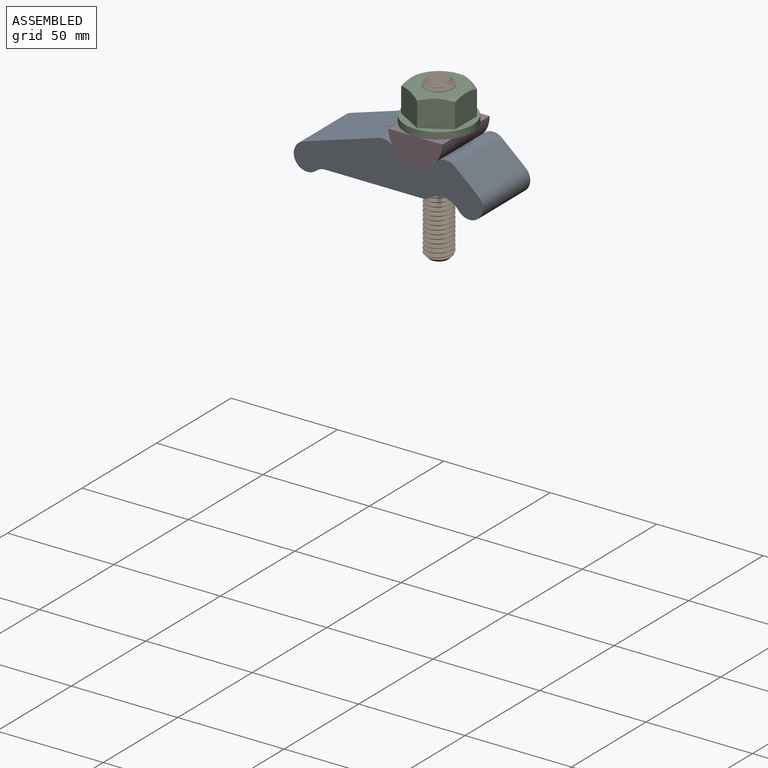
[diagram: assembled view]
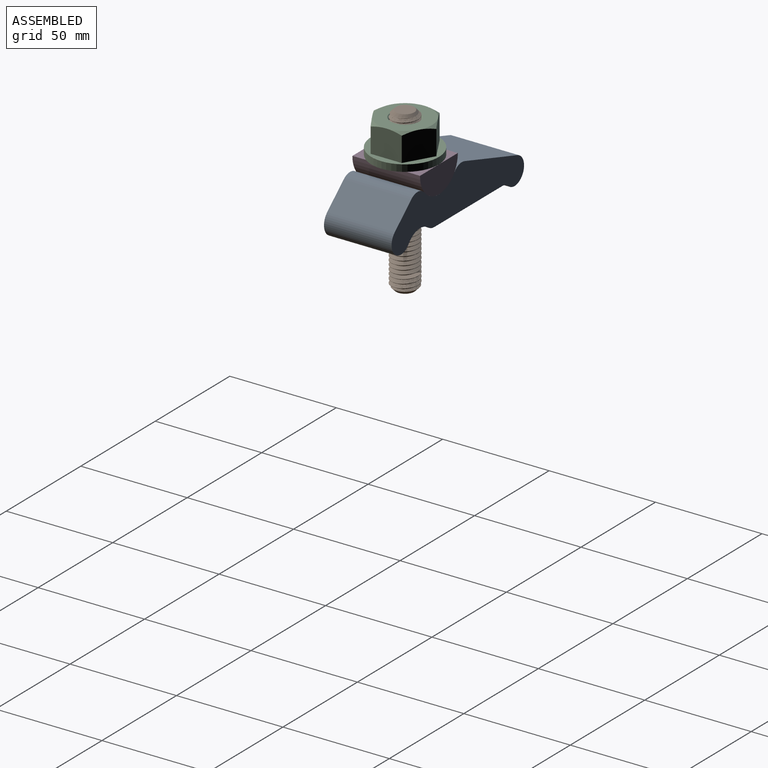
[diagram: assembled view, second angle]
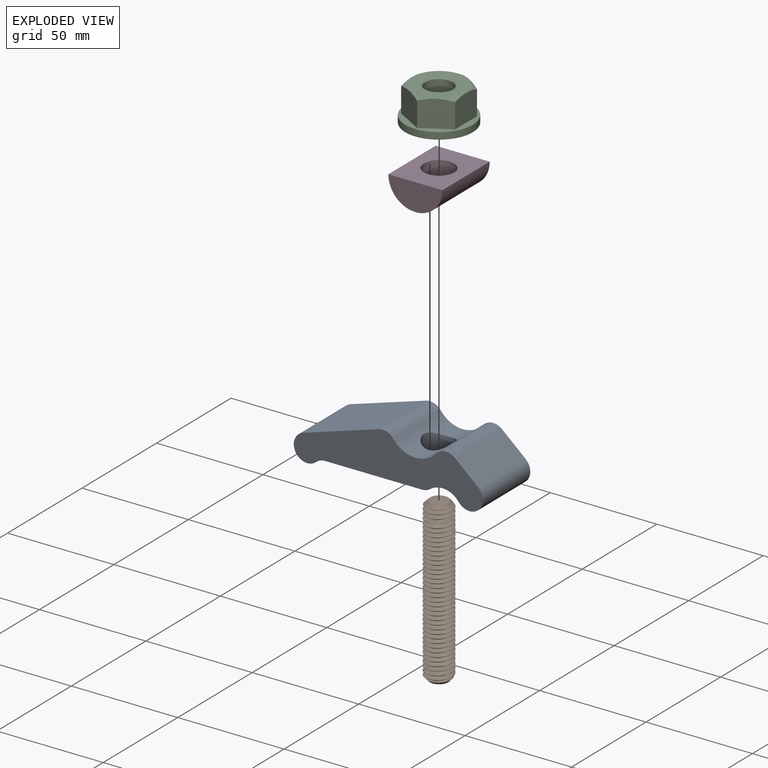
[diagram: exploded view]
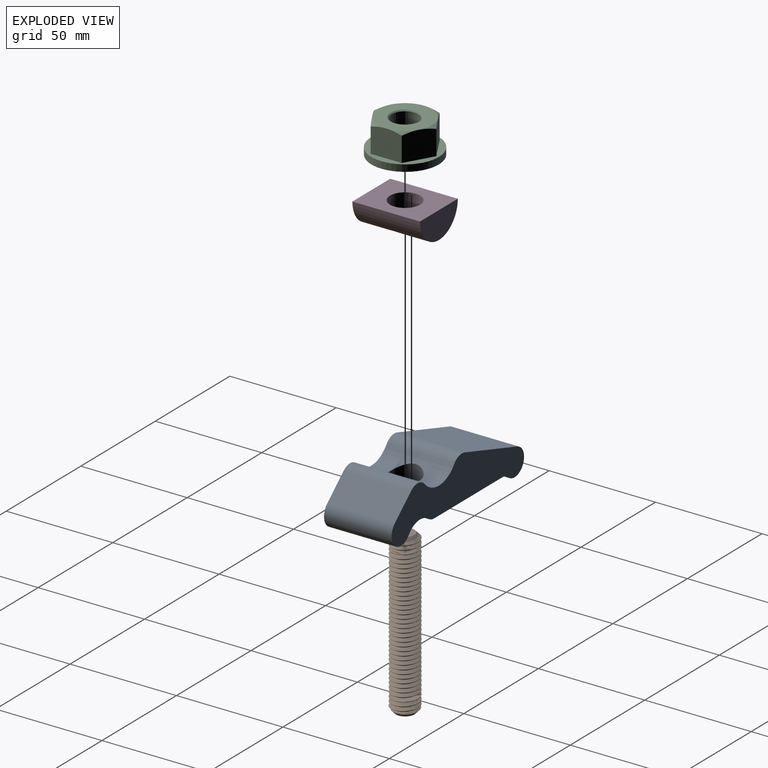
[diagram: exploded view, second angle]
ASSEMBLY  parts=4 mates=3
PART A: 15 faces, bbox 88.9x31.8x23.7 mm
  f0: cylinder r=6.35mm len=14.41mm, axis (0,1,0), area 45.9mm2, adj f6,f8,f12,f14
  f1: cylinder r=12.7mm len=31.75mm, axis (0,1,0), area 555.2mm2, adj f2,f11,f12,f13,f14
  f2: cylinder r=6.35mm len=31.75mm, axis (0,1,0), area 250mm2, adj f1,f3,f12,f13
  f3: plane 35.42x31.75mm, normal (-0.3,0,0.96), area 1177.5mm2, adj f2,f4,f12,f13
  f4: cylinder r=6.35mm len=31.75mm, axis (0,1,0), area 718.5mm2, adj f3,f5,f12,f13
  f5: cylinder r=6.35mm len=31.75mm, axis (0,1,0), area 145.7mm2, adj f4,f6,f12,f13
  f6: plane 45.57x31.75mm, normal (0,0,-1), area 1323.2mm2, adj f0,f5,f7,f12,f13,f14
  f7: cylinder r=6.35mm len=14.41mm, axis (0,1,0), area 45.9mm2, adj f6,f8,f13,f14
  f8: cylinder r=9.53mm len=31.75mm, axis (0,1,0), area 474.8mm2, adj f0,f7,f9,f12,f13,f14
  f9: cylinder r=6.35mm len=31.75mm, axis (0,1,0), area 675.4mm2, adj f8,f10,f12,f13
  f10: plane 31.75x11.06mm, normal (0.66,0,0.75), area 466.7mm2, adj f9,f11,f12,f13
  f11: cylinder r=6.35mm len=31.75mm, axis (0,1,0), area 316.7mm2, adj f1,f10,f12,f13
  f12: plane 88.9x23.68mm, normal (0,-1,0), area 1315.1mm2, adj f0,f1,f2,f3,f4,f5,f6,f8
  f13: plane 88.9x23.68mm, normal (0,1,0), area 1315.1mm2, adj f1,f2,f3,f4,f5,f6,f7,f8
  f14: cylinder r=7.14mm len=14.9mm, axis (0,0,1), area 606.6mm2, adj f0,f1,f6,f7,f8
PART B: 8 faces, bbox 12.7x14.7x77.4 mm
  f0: cylinder r=6.35mm len=72.14mm, axis (0,0,-1), area 656.3mm2, adj f3,f5,f6,f7
  f1: plane 8.64x8.64mm, normal (0,0,1), area 58.6mm2, adj f4
  f2: plane 8.64x8.64mm, normal (0,0,-1), area 58.6mm2, adj f3
  f3: cone r=6.35mm half-angle=45deg, axis (0,0,1), area 59mm2, adj f0,f2,f6,f7
  f4: cone r=4.32mm half-angle=45deg, axis (0,0,-1), area 58.2mm2, adj f1,f5,f6,f7
  f5: cone r=4.32mm half-angle=45deg, axis (0,0,-1), area 0.7mm2, adj f0,f4,f6
  f6: bspline ~76.45x14.66mm, area 2382.8mm2, adj f0,f3,f4,f5,f7
  f7: bspline ~76.45x14.66mm, area 2386.6mm2, adj f0,f3,f4,f6
PART C: 19 faces, bbox 31.8x31.8x15.9 mm
  f0: plane 25.4x25.4mm, normal (0,0,1), area 359mm2, adj f9,f10,f11,f12,f13,f14,f17
  f1: plane 12.7x12.7mm, normal (0.5,0.87,0), area 180.5mm2, adj f2,f6,f10,f14,f16
  f2: plane 12.7x12.7mm, normal (-0.5,0.87,0), area 180.5mm2, adj f1,f3,f13,f14,f16
  f3: plane 14.67x12.7mm, normal (-1,0,0), area 180.5mm2, adj f2,f4,f12,f13,f16
  f4: plane 12.7x12.7mm, normal (-0.5,-0.87,0), area 180.5mm2, adj f3,f5,f11,f12,f16
  f5: plane 12.7x12.7mm, normal (0.5,-0.87,0), area 180.5mm2, adj f4,f6,f9,f11,f16
  f6: plane 14.67x12.7mm, normal (1,0,0), area 180.5mm2, adj f1,f5,f9,f10,f16
  f7: cylinder r=6.35mm len=14.86mm, axis (0,0,-1), area 592.8mm2, adj f17,f18
  f8: plane 31.75x31.75mm, normal (0,0,-1), area 644mm2, adj f15,f18
  f9: cone r=16.71mm half-angle=60deg, axis (0,0,-1), area 10mm2, adj f0,f5,f6
  f10: cone r=16.71mm half-angle=60deg, axis (0,0,-1), area 10mm2, adj f0,f1,f6
  f11: cone r=16.71mm half-angle=60deg, axis (0,0,-1), area 10mm2, adj f0,f4,f5
  f12: cone r=16.71mm half-angle=60deg, axis (0,0,-1), area 10mm2, adj f0,f3,f4
  f13: cone r=16.71mm half-angle=60deg, axis (0,0,-1), area 10mm2, adj f0,f2,f3
  f14: cone r=16.71mm half-angle=60deg, axis (0,0,-1), area 10mm2, adj f0,f1,f2
  f15: cylinder r=15.88mm len=31.75mm, axis (0,0,-1), area 316.7mm2, adj f8,f16
  f16: plane 31.75x31.75mm, normal (0,0,1), area 233mm2, adj f1,f2,f3,f4,f5,f6,f15
  f17: cone r=6.35mm half-angle=45deg, axis (0,0,1), area 29.8mm2, adj f0,f7
  f18: cone r=6.86mm half-angle=45deg, axis (0,0,-1), area 29.8mm2, adj f7,f8
PART D: 5 faces, bbox 25.4x31.8x12.7 mm
  f0: plane 31.75x25.4mm, normal (0,0,1), area 646.4mm2, adj f1,f2,f3,f4
  f1: cylinder r=12.7mm len=31.75mm, axis (0,1,0), area 1099.6mm2, adj f0,f2,f3,f4
  f2: plane 25.4x12.7mm, normal (0,-1,0), area 253.4mm2, adj f0,f1
  f3: plane 25.4x12.7mm, normal (0,1,0), area 253.4mm2, adj f0,f1
  f4: cylinder r=7.14mm len=14.28mm, axis (0,0,1), area 521.5mm2, adj f0,f1
PLACE A t=(14.81,32.79,16.04)mm
PLACE B t=(14.81,32.79,19.22)mm
PLACE C t=(14.81,32.79,38.27)mm
PLACE D t=(14.81,32.79,38.27)mm
MATE fastened A.f1 <-> D.f1  axis (0,1,0) through (14.81,48.67,38.27)mm
MATE fastened C.f7 <-> D.f4  axis (0,0,-1) through (14.81,32.79,38.27)mm
MATE fastened B.f0 <-> D.f4  axis (0,0,1) through (14.81,32.79,57.32)mm
